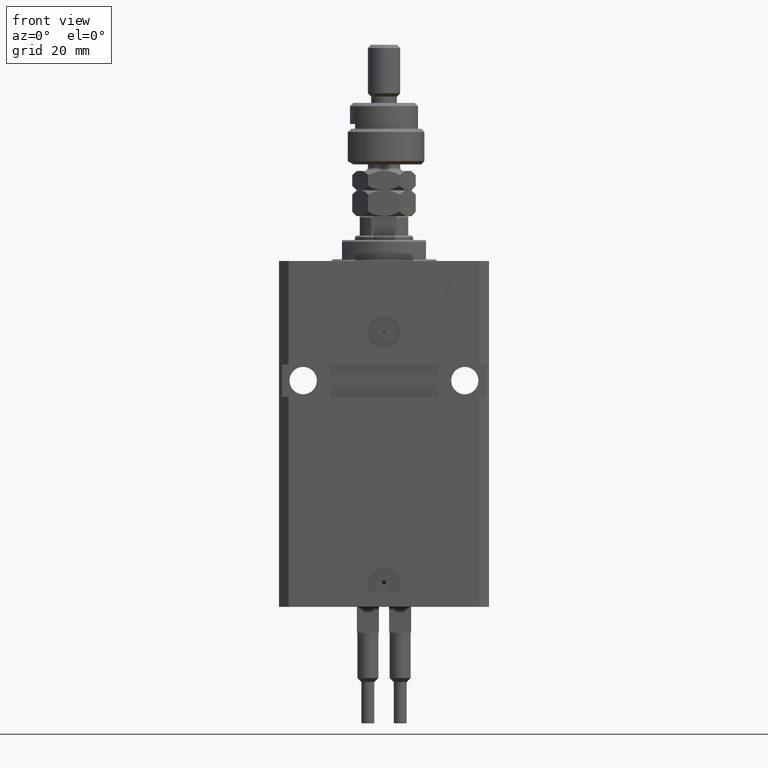
[diagram: clean part render]
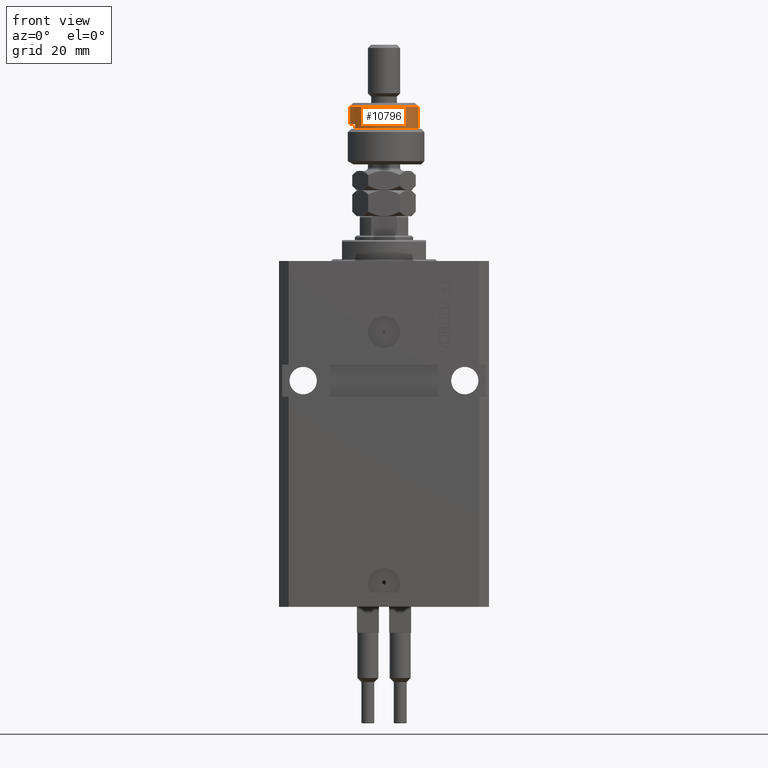
[diagram: same view with one face highlighted and labeled with its STEP entity id]
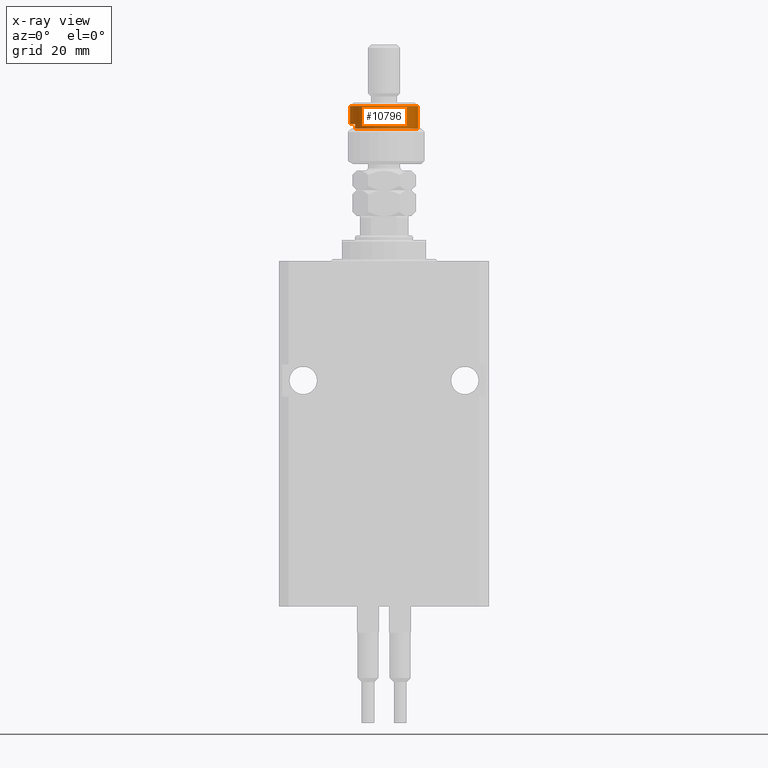
[diagram: x-ray of the same camera — body ghosted, the highlighted face saturated]
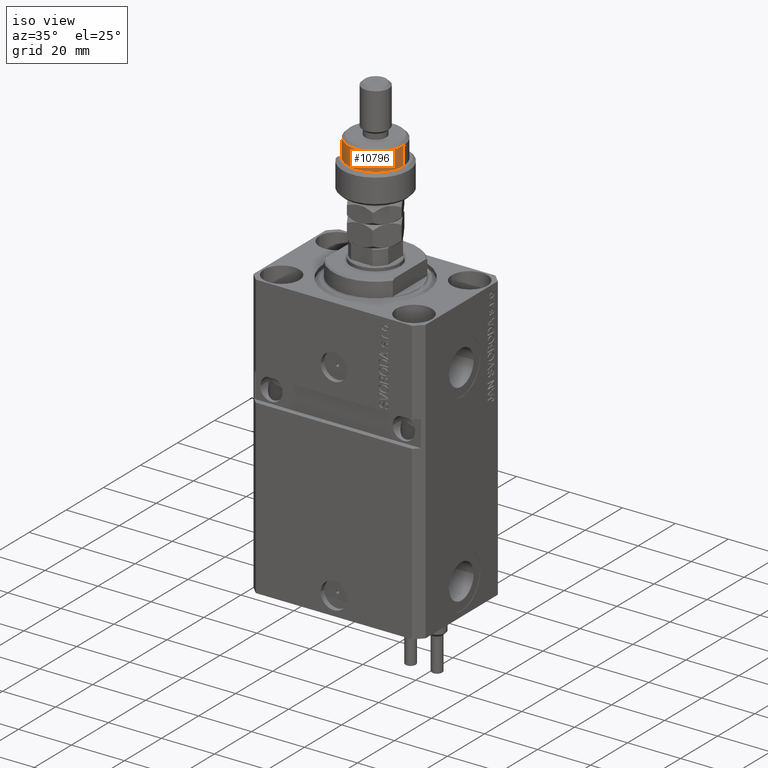
[diagram: same view with one face highlighted and labeled with its STEP entity id]
A machine part, front view. The second image highlights one B-rep face of the part: STEP entity #10796.
The next image is the same camera in x-ray: the body ghosted, the highlighted face saturated — about 0% of this face is hidden behind the body in this view.
A second angle (iso view) of the same face is appended — the face is thin or edge-on in the first view.
In plain terms, the highlighted cylindrical surface (edge-blend (fillet) strip) has radius 10.5 mm, axis along (-0, -0, -1).
Its self-contained STEP definition (entity closure, byte-faithful):
#417 = DIRECTION ( 'NONE',  ( -1.000000000000000000, 0.000000000000000000, 0.000000000000000000 ) ) ;
#2239 = DIRECTION ( 'NONE',  ( -1.000000000000000000, 0.000000000000000000, 0.000000000000000000 ) ) ;
#2245 = CIRCLE ( 'NONE', #35919, 10.50000000000000000 ) ;
#4269 = CARTESIAN_POINT ( 'NONE',  ( 0.000000000000000000, 0.000000000000000000, 12.50000000000000000 ) ) ;
#5456 = VERTEX_POINT ( 'NONE', #32198 ) ;
#6459 = ORIENTED_EDGE ( 'NONE', *, *, #43533, .T. ) ;
#6966 = VERTEX_POINT ( 'NONE', #49627 ) ;
#8183 = EDGE_CURVE ( 'NONE', #23833, #9008, #47008, .T. ) ;
#9008 = VERTEX_POINT ( 'NONE', #19132 ) ;
#10308 = CIRCLE ( 'NONE', #34864, 10.50000000000000000 ) ;
#10715 = VECTOR ( 'NONE', #19411, 1000.000000000000000 ) ;
#10796 = ADVANCED_FACE ( 'NONE', ( #48018 ), #36450, .T. ) ;
#11795 = CARTESIAN_POINT ( 'NONE',  ( -10.50000000000000000, 0.000000000000000000, 19.00000000000000000 ) ) ;
#11893 = EDGE_CURVE ( 'NONE', #5456, #23833, #10308, .T. ) ;
#13182 = CARTESIAN_POINT ( 'NONE',  ( 0.000000000000000000, 0.000000000000000000, 11.00000000000000000 ) ) ;
#13624 = CARTESIAN_POINT ( 'NONE',  ( -8.944271909999159220, -5.500000000000000000, 12.50000000000000000 ) ) ;
#14030 = AXIS2_PLACEMENT_3D ( 'NONE', #22308, #25896, #2239 ) ;
#14415 = VECTOR ( 'NONE', #42356, 1000.000000000000000 ) ;
#15600 = DIRECTION ( 'NONE',  ( 0.000000000000000000, 0.000000000000000000, -1.000000000000000000 ) ) ;
#16856 = EDGE_CURVE ( 'NONE', #5456, #6966, #46477, .T. ) ;
#19132 = CARTESIAN_POINT ( 'NONE',  ( -10.50000000000000000, 0.000000000000000000, 12.50000000000000000 ) ) ;
#19411 = DIRECTION ( 'NONE',  ( -0.000000000000000000, -0.000000000000000000, -1.000000000000000000 ) ) ;
#22308 = CARTESIAN_POINT ( 'NONE',  ( 0.000000000000000000, 0.000000000000000000, 19.00000000000000000 ) ) ;
#23833 = VERTEX_POINT ( 'NONE', #44594 ) ;
#24489 = DIRECTION ( 'NONE',  ( 0.000000000000000000, 0.000000000000000000, 1.000000000000000000 ) ) ;
#25896 = DIRECTION ( 'NONE',  ( -0.000000000000000000, -0.000000000000000000, -1.000000000000000000 ) ) ;
#26683 = CARTESIAN_POINT ( 'NONE',  ( 10.50000000000000000, 1.285879139104720831E-15, 19.00000000000000000 ) ) ;
#27467 = DIRECTION ( 'NONE',  ( -0.000000000000000000, -0.000000000000000000, -1.000000000000000000 ) ) ;
#28002 = ORIENTED_EDGE ( 'NONE', *, *, #50526, .T. ) ;
#28530 = VERTEX_POINT ( 'NONE', #47822 ) ;
#28858 = DIRECTION ( 'NONE',  ( 1.000000000000000000, 0.000000000000000000, 0.000000000000000000 ) ) ;
#29776 = DIRECTION ( 'NONE',  ( 0.000000000000000000, 0.000000000000000000, -1.000000000000000000 ) ) ;
#30906 = EDGE_LOOP ( 'NONE', ( #46367, #36786, #44564, #44648, #28002, #6459 ) ) ;
#32198 = CARTESIAN_POINT ( 'NONE',  ( 10.50000000000000000, 1.285879139104720831E-15, 17.99999999999999645 ) ) ;
#32611 = EDGE_CURVE ( 'NONE', #48766, #9008, #41985, .T. ) ;
#34864 = AXIS2_PLACEMENT_3D ( 'NONE', #44435, #29776, #45201 ) ;
#35919 = AXIS2_PLACEMENT_3D ( 'NONE', #13182, #24489, #28858 ) ;
#36001 = VECTOR ( 'NONE', #27467, 1000.000000000000000 ) ;
#36450 = CYLINDRICAL_SURFACE ( 'NONE', #14030, 10.50000000000000000 ) ;
#36786 = ORIENTED_EDGE ( 'NONE', *, *, #11893, .T. ) ;
#38185 = CARTESIAN_POINT ( 'NONE',  ( -8.944271909999159220, -5.500000000000000000, 19.00000000000000000 ) ) ;
#41985 = CIRCLE ( 'NONE', #50197, 10.50000000000000000 ) ;
#42356 = DIRECTION ( 'NONE',  ( -0.000000000000000000, -0.000000000000000000, -1.000000000000000000 ) ) ;
#43533 = EDGE_CURVE ( 'NONE', #28530, #6966, #2245, .T. ) ;
#44435 = CARTESIAN_POINT ( 'NONE',  ( 0.000000000000000000, 0.000000000000000000, 17.99999999999999645 ) ) ;
#44564 = ORIENTED_EDGE ( 'NONE', *, *, #8183, .T. ) ;
#44594 = CARTESIAN_POINT ( 'NONE',  ( -10.50000000000000000, 0.000000000000000000, 17.99999999999999645 ) ) ;
#44648 = ORIENTED_EDGE ( 'NONE', *, *, #32611, .F. ) ;
#45201 = DIRECTION ( 'NONE',  ( 1.000000000000000000, 0.000000000000000000, 0.000000000000000000 ) ) ;
#46367 = ORIENTED_EDGE ( 'NONE', *, *, #16856, .F. ) ;
#46477 = LINE ( 'NONE', #26683, #14415 ) ;
#47008 = LINE ( 'NONE', #11795, #36001 ) ;
#47822 = CARTESIAN_POINT ( 'NONE',  ( -8.944271909999159220, -5.500000000000000000, 11.00000000000000000 ) ) ;
#48018 = FACE_OUTER_BOUND ( 'NONE', #30906, .T. ) ;
#48766 = VERTEX_POINT ( 'NONE', #13624 ) ;
#49627 = CARTESIAN_POINT ( 'NONE',  ( 10.50000000000000000, 1.285879139104720831E-15, 11.00000000000000000 ) ) ;
#50197 = AXIS2_PLACEMENT_3D ( 'NONE', #4269, #15600, #417 ) ;
#50505 = LINE ( 'NONE', #38185, #10715 ) ;
#50526 = EDGE_CURVE ( 'NONE', #48766, #28530, #50505, .T. ) ;